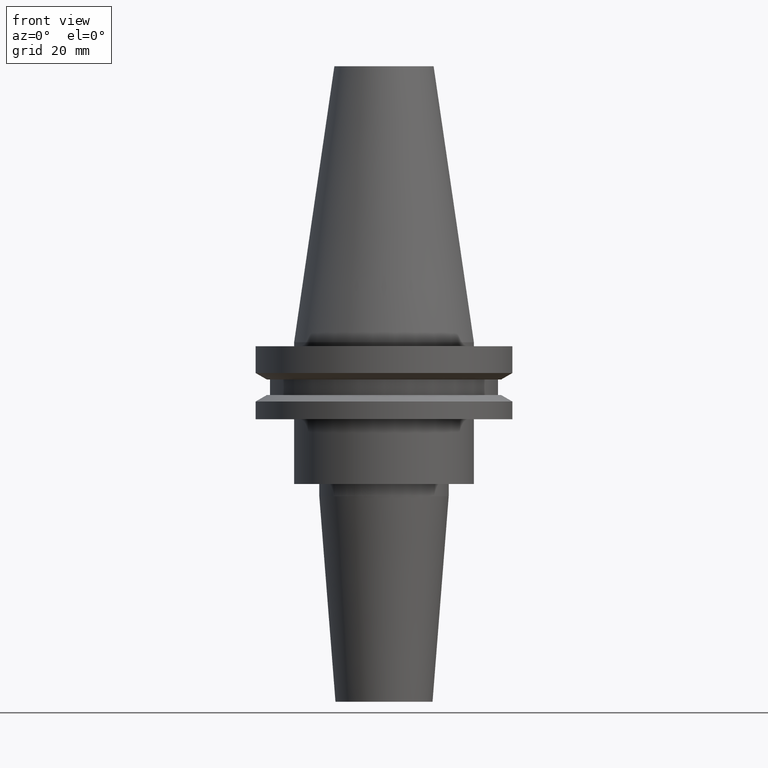
[diagram: clean part render]
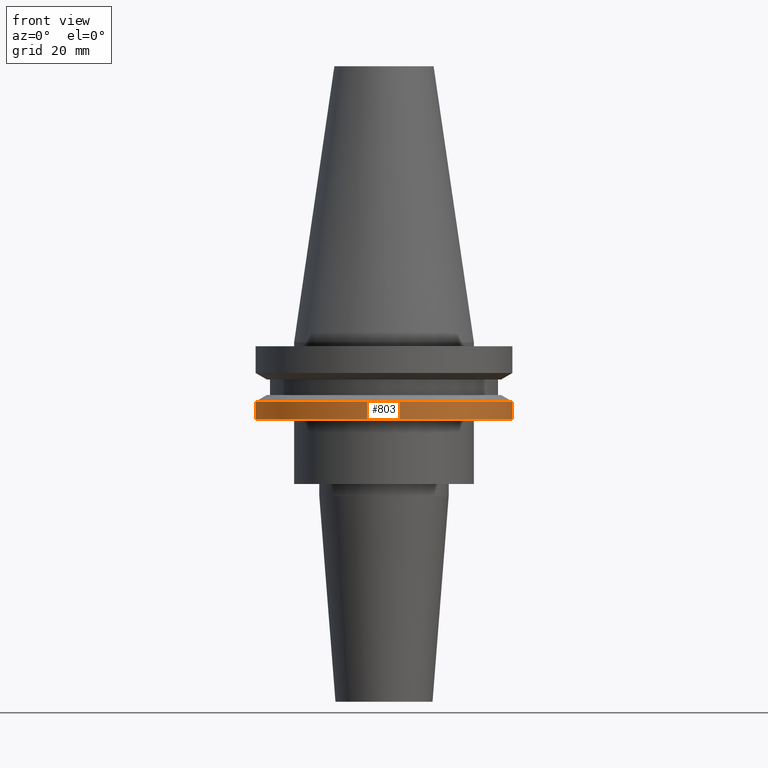
[diagram: same view with one face highlighted and labeled with its STEP entity id]
A machine part, front view. The second image highlights one B-rep face of the part: STEP entity #803.
In plain terms, the highlighted cylindrical surface (partial cylindrical patch) has radius 31.75 mm, axis along (-0, -0, 1).
Its self-contained STEP definition (entity closure, byte-faithful):
#67 = VERTEX_POINT ( 'NONE', #80 ) ;
#73 = DIRECTION ( 'NONE',  ( 1.000000000000000000, 0.000000000000000000, 0.000000000000000000 ) ) ;
#80 = CARTESIAN_POINT ( 'NONE',  ( -31.74999999999999289, 3.888253587292845687E-15, -19.04999999999999716 ) ) ;
#83 = LINE ( 'NONE', #618, #279 ) ;
#85 = CARTESIAN_POINT ( 'NONE',  ( 0.000000000000000000, 0.000000000000000000, -14.65472339340266572 ) ) ;
#91 = CARTESIAN_POINT ( 'NONE',  ( 31.75000000000000000, 0.000000000000000000, -14.65472339340266572 ) ) ;
#146 = EDGE_CURVE ( 'NONE', #581, #845, #841, .T. ) ;
#167 = CARTESIAN_POINT ( 'NONE',  ( 31.74999999999999289, 0.000000000000000000, -19.04999999999999716 ) ) ;
#194 = CYLINDRICAL_SURFACE ( 'NONE', #574, 31.75000000000000000 ) ;
#199 = VECTOR ( 'NONE', #284, 1000.000000000000000 ) ;
#206 = CARTESIAN_POINT ( 'NONE',  ( 0.000000000000000000, 0.000000000000000000, -19.04999999999999716 ) ) ;
#229 = VERTEX_POINT ( 'NONE', #167 ) ;
#230 = DIRECTION ( 'NONE',  ( -0.000000000000000000, -0.000000000000000000, 1.000000000000000000 ) ) ;
#244 = EDGE_LOOP ( 'NONE', ( #357, #704, #258, #761 ) ) ;
#258 = ORIENTED_EDGE ( 'NONE', *, *, #844, .T. ) ;
#279 = VECTOR ( 'NONE', #484, 1000.000000000000000 ) ;
#284 = DIRECTION ( 'NONE',  ( -0.000000000000000000, -0.000000000000000000, 1.000000000000000000 ) ) ;
#348 = FACE_OUTER_BOUND ( 'NONE', #244, .T. ) ;
#351 = DIRECTION ( 'NONE',  ( -0.000000000000000000, -0.000000000000000000, 1.000000000000000000 ) ) ;
#357 = ORIENTED_EDGE ( 'NONE', *, *, #463, .F. ) ;
#414 = CARTESIAN_POINT ( 'NONE',  ( -31.75000000000000000, 3.888253587292846476E-15, -14.65472339340266572 ) ) ;
#463 = EDGE_CURVE ( 'NONE', #67, #581, #724, .T. ) ;
#470 = AXIS2_PLACEMENT_3D ( 'NONE', #85, #351, #616 ) ;
#478 = AXIS2_PLACEMENT_3D ( 'NONE', #206, #804, #73 ) ;
#484 = DIRECTION ( 'NONE',  ( -0.000000000000000000, -0.000000000000000000, 1.000000000000000000 ) ) ;
#521 = EDGE_CURVE ( 'NONE', #67, #229, #737, .T. ) ;
#556 = CARTESIAN_POINT ( 'NONE',  ( 0.000000000000000000, 0.000000000000000000, 68.25000000000000000 ) ) ;
#574 = AXIS2_PLACEMENT_3D ( 'NONE', #556, #230, #658 ) ;
#581 = VERTEX_POINT ( 'NONE', #414 ) ;
#595 = CARTESIAN_POINT ( 'NONE',  ( -31.75000000000000000, 3.888253587292846476E-15, 68.25000000000000000 ) ) ;
#616 = DIRECTION ( 'NONE',  ( 1.000000000000000000, 0.000000000000000000, 0.000000000000000000 ) ) ;
#618 = CARTESIAN_POINT ( 'NONE',  ( 31.75000000000000000, 0.000000000000000000, 68.25000000000000000 ) ) ;
#658 = DIRECTION ( 'NONE',  ( 1.000000000000000000, 0.000000000000000000, 0.000000000000000000 ) ) ;
#704 = ORIENTED_EDGE ( 'NONE', *, *, #521, .T. ) ;
#724 = LINE ( 'NONE', #595, #199 ) ;
#737 = CIRCLE ( 'NONE', #478, 31.74999999999999289 ) ;
#761 = ORIENTED_EDGE ( 'NONE', *, *, #146, .F. ) ;
#803 = ADVANCED_FACE ( 'NONE', ( #348 ), #194, .T. ) ;
#804 = DIRECTION ( 'NONE',  ( -0.000000000000000000, -0.000000000000000000, 1.000000000000000000 ) ) ;
#841 = CIRCLE ( 'NONE', #470, 31.75000000000000000 ) ;
#844 = EDGE_CURVE ( 'NONE', #229, #845, #83, .T. ) ;
#845 = VERTEX_POINT ( 'NONE', #91 ) ;